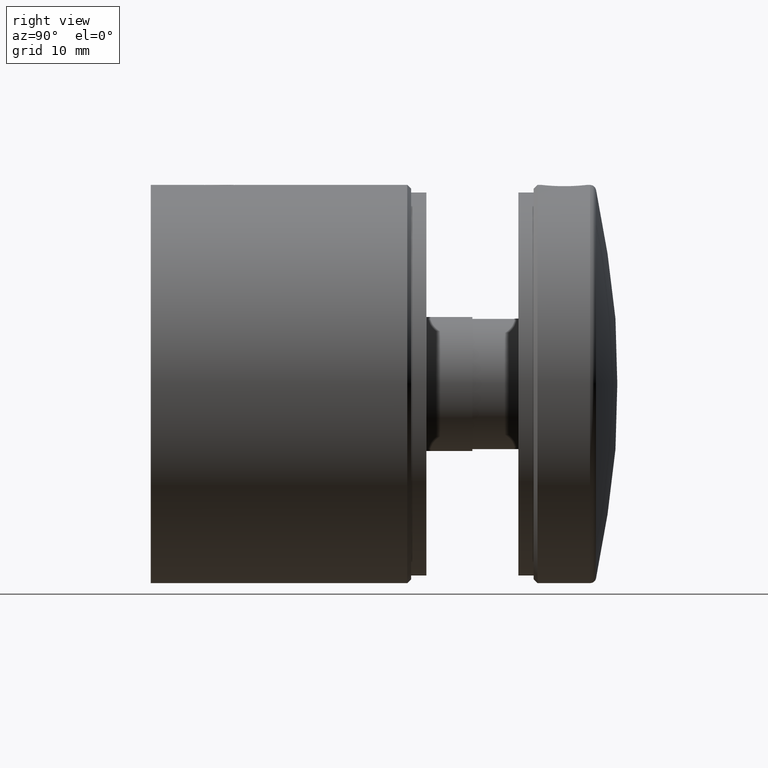
[diagram: clean part render]
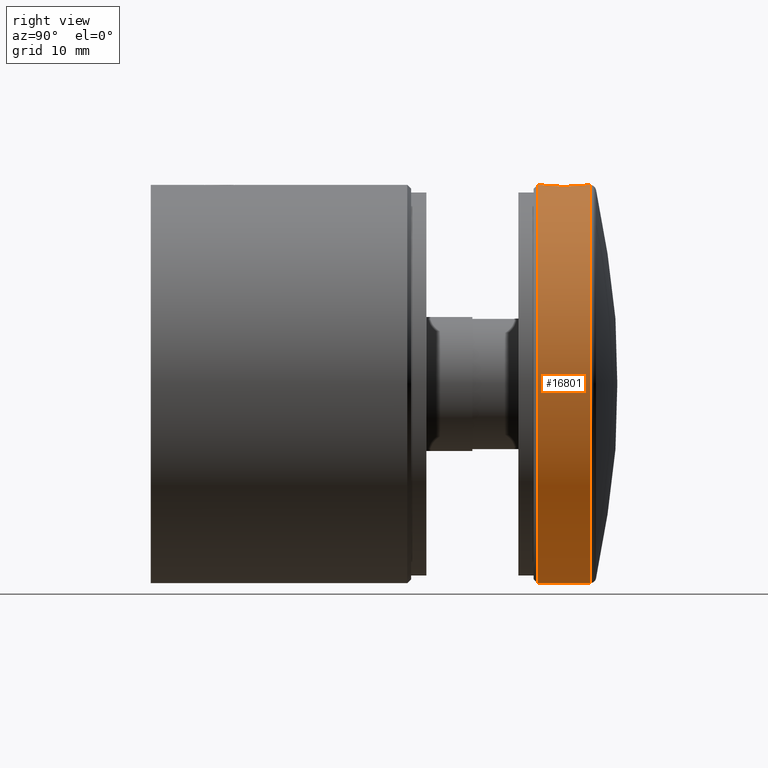
[diagram: same view with one face highlighted and labeled with its STEP entity id]
A machine part, right view. The second image highlights one B-rep face of the part: STEP entity #16801.
In plain terms, the highlighted cylindrical surface (bore or boss wall) has radius 26 mm, axis along (-0, -1, -0).
Its self-contained STEP definition (entity closure, byte-faithful):
#180 = CARTESIAN_POINT ( 'NONE',  ( -1.328482013767581016, 9.303001196752777702, 25.96667512040692927 ) ) ;
#339 = CARTESIAN_POINT ( 'NONE',  ( 2.695823260802125088, 10.66913855475554662, 25.85997437936805454 ) ) ;
#454 = EDGE_CURVE ( 'NONE', #12481, #12481, #11474, .T. ) ;
#496 = CARTESIAN_POINT ( 'NONE',  ( 0.7795573863352983635, 9.096333107480285562, 25.98903255766746057 ) ) ;
#576 = CARTESIAN_POINT ( 'NONE',  ( 0.7744147086170432015, 14.90491534289618158, 25.98917292353332087 ) ) ;
#658 = CARTESIAN_POINT ( 'NONE',  ( -3.000072698718975417, 12.19474097991231787, 25.82633469557358552 ) ) ;
#784 = CARTESIAN_POINT ( 'NONE',  ( 0.000000000000000000, 0.000000000000000000, 0.000000000000000000 ) ) ;
#1921 = CARTESIAN_POINT ( 'NONE',  ( 0.1974822290173422756, 9.000108484639907758, 25.99998748254342118 ) ) ;
#2033 = CARTESIAN_POINT ( 'NONE',  ( 2.999999999999998224, 12.00000000000000000, 25.82634314028991085 ) ) ;
#2072 = VERTEX_POINT ( 'NONE', #18304 ) ;
#2162 = CARTESIAN_POINT ( 'NONE',  ( 2.259367191999813063, 10.01669791220003347, 25.90201740359187710 ) ) ;
#2398 = CARTESIAN_POINT ( 'NONE',  ( 1.328453288779688934, 14.69701230497748412, 25.96667653642898443 ) ) ;
#2470 = CARTESIAN_POINT ( 'NONE',  ( -1.505373951746086014, 14.60235255640465368, 25.95689653493614557 ) ) ;
#2635 = CARTESIAN_POINT ( 'NONE',  ( -1.503943005669261535, 9.396862869047128086, 25.95697701017397918 ) ) ;
#3160 = DIRECTION ( 'NONE',  ( 0.000000000000000000, 0.000000000000000000, -1.000000000000000000 ) ) ;
#3772 = CARTESIAN_POINT ( 'NONE',  ( 0.3922386663974057330, 9.019204809134347300, 25.99776282357140289 ) ) ;
#4079 = CARTESIAN_POINT ( 'NONE',  ( 0.9687707735393102926, 9.154012067514830875, 25.98257320991144326 ) ) ;
#4151 = CARTESIAN_POINT ( 'NONE',  ( -2.697477801571571021, 13.32732746258856160, 25.85980002059915250 ) ) ;
#4222 = CARTESIAN_POINT ( 'NONE',  ( 2.382280341642609933, 13.83402231236238045, 25.89086534581342391 ) ) ;
#4299 = CARTESIAN_POINT ( 'NONE',  ( 2.999999999999998224, 12.19837139123400327, 25.82634314028991085 ) ) ;
#4345 = VERTEX_POINT ( 'NONE', #20297 ) ;
#4382 = CARTESIAN_POINT ( 'NONE',  ( 0.1955564443005259334, 15.00018210611529490, 26.00002101223516604 ) ) ;
#4445 = FACE_BOUND ( 'NONE', #21972, .T. ) ;
#4497 = EDGE_CURVE ( 'NONE', #2072, #2072, #10613, .T. ) ;
#5556 = CARTESIAN_POINT ( 'NONE',  ( 2.904216902360977848, 11.22297140875059895, 25.83731794412976512 ) ) ;
#6022 = CARTESIAN_POINT ( 'NONE',  ( 1.981300663533632544, 14.26112274055072149, 25.92477039080534951 ) ) ;
#6110 = CARTESIAN_POINT ( 'NONE',  ( -2.846869066070606635, 12.96618901026842252, 25.84378029847802338 ) ) ;
#6259 = CARTESIAN_POINT ( 'NONE',  ( -2.904394120158765968, 12.77683473340630904, 25.83729836467457019 ) ) ;
#6717 = FACE_OUTER_BOUND ( 'NONE', #23067, .T. ) ;
#7782 = CARTESIAN_POINT ( 'NONE',  ( -2.384525331870829490, 10.16909938193571428, 25.89065376688521880 ) ) ;
#7852 = CARTESIAN_POINT ( 'NONE',  ( 2.695137482997141287, 13.33206515851895446, 25.86004491185303777 ) ) ;
#7930 = CARTESIAN_POINT ( 'NONE',  ( 2.999999999999998224, 12.00000000000000355, 25.82634314028990730 ) ) ;
#8012 = CARTESIAN_POINT ( 'NONE',  ( -2.981150286349718126, 12.38951300162672098, 25.82855464327465000 ) ) ;
#8193 = ORIENTED_EDGE ( 'NONE', *, *, #13453, .T. ) ;
#8844 = AXIS2_PLACEMENT_3D ( 'NONE', #19298, #13616, #19213 ) ;
#9271 = CARTESIAN_POINT ( 'NONE',  ( 1.504046466543745408, 9.396782041410565611, 25.95698036821285726 ) ) ;
#9425 = CARTESIAN_POINT ( 'NONE',  ( 2.999999999999997780, 11.80162860876600206, 25.82634314028990730 ) ) ;
#9555 = CARTESIAN_POINT ( 'NONE',  ( -2.261499722814582558, 13.98087377345776083, 25.90183065763340764 ) ) ;
#9641 = CARTESIAN_POINT ( 'NONE',  ( -1.980419221218367998, 9.737892032816926502, 25.92484683164365222 ) ) ;
#9795 = CARTESIAN_POINT ( 'NONE',  ( -1.828850462055285231, 9.613899944619420879, 25.93611007954820735 ) ) ;
#9872 = CARTESIAN_POINT ( 'NONE',  ( -1.333240681001386374, 14.69464700226037479, 25.96643006980510648 ) ) ;
#10313 = CARTESIAN_POINT ( 'NONE',  ( 0.000000000000000000, 15.36369618043120511, 0.000000000000000000 ) ) ;
#10613 = CIRCLE ( 'NONE', #8844, 26.00000000000000000 ) ;
#10971 = CARTESIAN_POINT ( 'NONE',  ( -0.3931071775928753342, 9.019401675169609334, 25.99774064185299238 ) ) ;
#11210 = CARTESIAN_POINT ( 'NONE',  ( 1.982834401776012001, 9.740222352776619630, 25.92465261906889396 ) ) ;
#11288 = CARTESIAN_POINT ( 'NONE',  ( 2.385970178955810095, 10.17091274813867408, 25.89052151725268658 ) ) ;
#11373 = CARTESIAN_POINT ( 'NONE',  ( -1.831066051039929921, 14.38444682875305247, 25.93595623023574248 ) ) ;
#11451 = CARTESIAN_POINT ( 'NONE',  ( -2.980222010311326830, 11.60407909247042291, 25.82866189750345498 ) ) ;
#11474 = B_SPLINE_CURVE_WITH_KNOTS ( 'NONE', 3,
 ( #22076, #9425, #21997, #5556, #20136, #339, #12939, #11288, #2162, #11210, #20051, #9271, #13015, #4079, #496, #3772, #1921, #14519, #10971, #12867, #16334, #180, #2635, #9795, #9641, #13412, #7782, #20504, #16877, #18758, #20349, #11451, #22151, #658, #8012, #6259, #6110, #4151, #16726, #18834, #9555, #20662, #11373, #2470, #9872, #15213, #14909, #22451, #13094, #4382, #11692, #576, #13167, #2398, #14987, #13328, #6022, #13246, #4222, #16806, #7852, #20435, #15072, #18676, #4299, #7930 ),
 .UNSPECIFIED., .T., .F.,
 ( 4, 2, 2, 2, 2, 2, 2, 2, 2, 2, 2, 2, 2, 2, 2, 2, 2, 2, 2, 2, 2, 2, 2, 2, 2, 2, 2, 2, 2, 2, 2, 2, 4 ),
 ( 0.000000000000000000, 0.0005866289597237314300, 0.001173257919447462860, 0.001759886879171194182, 0.002346515838894925720, 0.002933144798618657258, 0.003519773758342388363, 0.004106402718066119902, 0.004693031677789851440, 0.005279660637513582978, 0.005866289597237314517, 0.006452918556961046055, 0.007039547516684776726, 0.007626176476408508265, 0.008212805436132239803, 0.008799434395855971341, 0.009386063355579702880, 0.009972692315303434418, 0.01055932127502716596, 0.01114595023475089750, 0.01173257919447462903, 0.01231920815419836057, 0.01290583711392209211, 0.01349246607364582365, 0.01407909503336955345, 0.01466572399309328499, 0.01525235295281701653, 0.01583898191254074980, 0.01642561087226447961, 0.01701223983198821288, 0.01759886879171194268, 0.01818549775143567596, 0.01877212671115940576 ),
 .UNSPECIFIED. ) ;
#11692 = CARTESIAN_POINT ( 'NONE',  ( 0.3907017863126575619, 14.98087292659182523, 25.99777258736625640 ) ) ;
#12204 = EDGE_LOOP ( 'NONE', ( #8193 ) ) ;
#12481 = VERTEX_POINT ( 'NONE', #2033 ) ;
#12867 = CARTESIAN_POINT ( 'NONE',  ( -0.7779860760478930493, 9.095996333932689026, 25.98907057590951908 ) ) ;
#12939 = CARTESIAN_POINT ( 'NONE',  ( 2.603667476540609371, 10.49689336991925437, 25.86953563173866399 ) ) ;
#13015 = CARTESIAN_POINT ( 'NONE',  ( 1.329678934057944240, 9.303684355303021292, 25.96660511796631710 ) ) ;
#13089 = AXIS2_PLACEMENT_3D ( 'NONE', #10313, #22890, #3160 ) ;
#13094 = CARTESIAN_POINT ( 'NONE',  ( -0.2011044140179882589, 14.99981532888682523, 25.99997869180358379 ) ) ;
#13167 = CARTESIAN_POINT ( 'NONE',  ( 0.9650574209274815907, 14.84733694668936188, 25.98272007820417073 ) ) ;
#13246 = CARTESIAN_POINT ( 'NONE',  ( 2.258024676797181218, 13.98483070465201372, 25.90213498332273190 ) ) ;
#13328 = CARTESIAN_POINT ( 'NONE',  ( 1.826971693114298523, 14.38759081562333186, 25.93624649503413693 ) ) ;
#13412 = CARTESIAN_POINT ( 'NONE',  ( -2.260506445678778675, 10.01775295283131051, 25.90192761446528635 ) ) ;
#13453 = EDGE_CURVE ( 'NONE', #4345, #4345, #22243, .T. ) ;
#13616 = DIRECTION ( 'NONE',  ( -0.000000000000000000, -1.000000000000000000, -0.000000000000000000 ) ) ;
#14519 = CARTESIAN_POINT ( 'NONE',  ( -0.1941723281477192586, 8.999892428313810200, 26.00001241211576897 ) ) ;
#14909 = CARTESIAN_POINT ( 'NONE',  ( -0.7796045846363183207, 14.90352505264683280, 25.98901706987855320 ) ) ;
#14987 = CARTESIAN_POINT ( 'NONE',  ( 1.500791135884891103, 14.60500315484245704, 25.95716343873230869 ) ) ;
#15072 = CARTESIAN_POINT ( 'NONE',  ( 2.902928602409402536, 12.78238175261913412, 25.83746369126679454 ) ) ;
#15111 = DIRECTION ( 'NONE',  ( 0.000000000000000000, 0.000000000000000000, -1.000000000000000000 ) ) ;
#15213 = CARTESIAN_POINT ( 'NONE',  ( -0.9701622282910408179, 14.84559983677698369, 25.98252887103857489 ) ) ;
#15522 = ORIENTED_EDGE ( 'NONE', *, *, #4497, .F. ) ;
#16334 = CARTESIAN_POINT ( 'NONE',  ( -0.9650708797723882570, 9.152667001800409707, 25.98271963183761457 ) ) ;
#16726 = CARTESIAN_POINT ( 'NONE',  ( -2.604463692874475544, 13.50188135155126545, 25.86945821533744549 ) ) ;
#16801 = ADVANCED_FACE ( 'NONE', ( #4445, #6717, #23021 ), #20779, .T. ) ;
#16806 = CARTESIAN_POINT ( 'NONE',  ( 2.601881734802040658, 13.50635616854826360, 25.86971935331580497 ) ) ;
#16877 = CARTESIAN_POINT ( 'NONE',  ( -2.695847567316084437, 10.66918899084642547, 25.85997182781258985 ) ) ;
#18304 = CARTESIAN_POINT ( 'NONE',  ( 0.000000000000000000, 8.500000000000000000, -26.00000000000000000 ) ) ;
#18676 = CARTESIAN_POINT ( 'NONE',  ( 2.980516047926730305, 12.39451206010617490, 25.82862846835401172 ) ) ;
#18758 = CARTESIAN_POINT ( 'NONE',  ( -2.846471190645790461, 11.03239790765421269, 25.84382593197624089 ) ) ;
#18834 = CARTESIAN_POINT ( 'NONE',  ( -2.385483644065929276, 13.82984876575435251, 25.89056907961826326 ) ) ;
#19213 = DIRECTION ( 'NONE',  ( 0.000000000000000000, 0.000000000000000000, -1.000000000000000000 ) ) ;
#19298 = CARTESIAN_POINT ( 'NONE',  ( 0.000000000000000000, 8.500000000000000000, 0.000000000000000000 ) ) ;
#19323 = AXIS2_PLACEMENT_3D ( 'NONE', #784, #22268, #15111 ) ;
#20051 = CARTESIAN_POINT ( 'NONE',  ( 1.831915627833455629, 9.616098859863344117, 25.93590312176944934 ) ) ;
#20136 = CARTESIAN_POINT ( 'NONE',  ( 2.846458888054149039, 11.03236006772277022, 25.84382730467127232 ) ) ;
#20297 = CARTESIAN_POINT ( 'NONE',  ( 0.000000000000000000, 15.36369618043120511, -25.99999999999999645 ) ) ;
#20349 = CARTESIAN_POINT ( 'NONE',  ( -2.903294483696322370, 11.21938630763890288, 25.83742208091259585 ) ) ;
#20435 = CARTESIAN_POINT ( 'NONE',  ( 2.845128384431394597, 12.97129198230969038, 25.84397286354044709 ) ) ;
#20504 = CARTESIAN_POINT ( 'NONE',  ( -2.601817656857964955, 10.49377856474421655, 25.86972088012399240 ) ) ;
#20662 = CARTESIAN_POINT ( 'NONE',  ( -1.985208033414806117, 14.25769594204546564, 25.92447032201571133 ) ) ;
#20779 = CYLINDRICAL_SURFACE ( 'NONE', #19323, 25.99999999999999645 ) ;
#21972 = EDGE_LOOP ( 'NONE', ( #22855 ) ) ;
#21997 = CARTESIAN_POINT ( 'NONE',  ( 2.980518406029754264, 11.60660544119665616, 25.82862722626441965 ) ) ;
#22076 = CARTESIAN_POINT ( 'NONE',  ( 2.999999999999998224, 12.00000000000000355, 25.82634314028990730 ) ) ;
#22151 = CARTESIAN_POINT ( 'NONE',  ( -2.999926885587592018, 11.80302556514894796, 25.82635163329338113 ) ) ;
#22243 = CIRCLE ( 'NONE', #13089, 25.99999999999999645 ) ;
#22268 = DIRECTION ( 'NONE',  ( -0.000000000000000000, -1.000000000000000000, -0.000000000000000000 ) ) ;
#22451 = CARTESIAN_POINT ( 'NONE',  ( -0.3960800891403077895, 14.98016133837085562, 25.99769051530946129 ) ) ;
#22855 = ORIENTED_EDGE ( 'NONE', *, *, #454, .T. ) ;
#22890 = DIRECTION ( 'NONE',  ( -0.000000000000000000, -1.000000000000000000, -0.000000000000000000 ) ) ;
#23021 = FACE_OUTER_BOUND ( 'NONE', #12204, .T. ) ;
#23067 = EDGE_LOOP ( 'NONE', ( #15522 ) ) ;